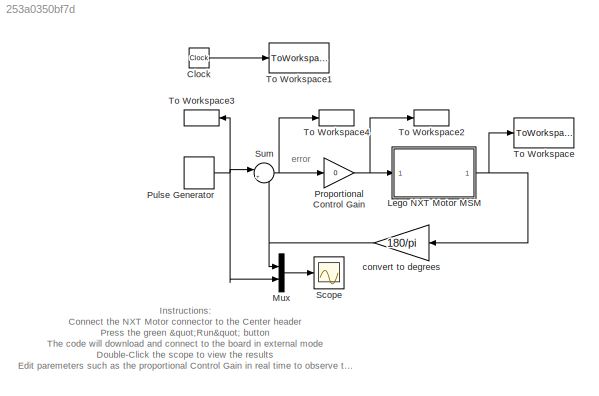
MODEL slx_253a0350bf7d
KIND model
CONFIG AbsTol = auto
CONFIG FixedStep = auto
CONFIG MaxStep = auto
CONFIG MinStep = auto
CONFIG RelTol = 1e-3
CONFIG SampleTimeConstraint = Unconstrained
CONFIG Solver = ode45
CONFIG SolverMode = Auto
CONFIG SolverName = ode45
CONFIG StartTime = 0.0
CONFIG StopTime = 10.0
BLOCK [Clock] Clock
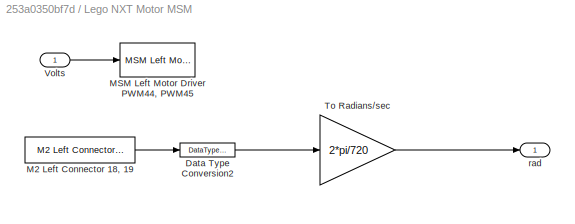
BLOCK [SubSystem] Lego NXT Motor MSM
  Ports = [1, 1]
  RequestExecContextInheritance = off
BLOCK [DataTypeConversion] Lego NXT Motor MSM/Data Type Conversion2
  OutDataTypeStr = double
  RndMeth = Floor
  SaturateOnIntegerOverflow = off
BLOCK [Reference] Lego NXT Motor MSM/M2 Left Connector 18, 19  REF=MinSegLibrary_MinSegMega/M2 Left Connector 18, 19
  Encoder = 1
  PinA = 19
  PinB = 18
  Ports = [0, 1]
  SourceBlock = MinSegLibrary_MinSegMega/M2 Left Connector 18, 19
  SourceType = Encoder_arduino
BLOCK [Reference] Lego NXT Motor MSM/MSM Left Motor Driver PWM44, PWM45  REF=MinSegLibrary_MinSegMega/MSM Left Motor Driver
PWM44, PWM45
  PWMoffset = 0
  Ports = [1]
  SourceBlock = MinSegLibrary_MinSegMega/MSM Left Motor Driver\nPWM44, PWM45
  Vsupply = 3.9
BLOCK [Gain] Lego NXT Motor MSM/To Radians//sec
  Gain = 2*pi/720
  OutDataTypeStr = Inherit: Inherit via internal rule
  ParamDataTypeStr = Inherit: Inherit via internal rule
  SaturateOnIntegerOverflow = off
BLOCK [Inport] Lego NXT Motor MSM/Volts
  IconDisplay = Port number
BLOCK [Outport] Lego NXT Motor MSM/rad 
  IconDisplay = Port number
BLOCK [Mux] Mux
  DisplayOption = bar
  Inputs = 2
  Ports = [2, 1]
BLOCK [Gain] Proportional Control Gain
  Gain = 0
  OutDataTypeStr = Inherit: Inherit via internal rule
  ParamDataTypeStr = Inherit: Inherit via internal rule
  SaturateOnIntegerOverflow = off
BLOCK [DiscretePulseGenerator] Pulse Generator
  Amplitude = 90
  Period = 3
  Ports = [0, 1]
  PulseType = Time based
  PulseWidth = 50
BLOCK [Scope] Scope
  DataFormat = StructureWithTime
  Floating = off
  NumInputPorts = 1
  Ports = [1]
  SampleTime = 0
  SaveName = ScopeData1
  TimeRange = 15
  YMax = 120
  YMin = -20
BLOCK [Sum] Sum
  IconShape = round
  InputSameDT = off
  Inputs = |+-
  OutDataTypeStr = Inherit: Inherit via internal rule
  Ports = [2, 1]
  SaturateOnIntegerOverflow = off
BLOCK [ToWorkspace] To Workspace
  MaxDataPoints = inf
  Ports = [1]
  SampleTime = -1
  VariableName = pos
BLOCK [ToWorkspace] To Workspace1
  MaxDataPoints = inf
  Ports = [1]
  SampleTime = -1
  VariableName = tsim
BLOCK [ToWorkspace] To Workspace2
  MaxDataPoints = inf
  Ports = [1]
  SampleTime = -1
  VariableName = vin
BLOCK [ToWorkspace] To Workspace3
  MaxDataPoints = inf
  Ports = [1]
  SampleTime = -1
  VariableName = ref
BLOCK [ToWorkspace] To Workspace4
  MaxDataPoints = inf
  Ports = [1]
  SampleTime = -1
  VariableName = error
BLOCK [Gain] convert to degrees
  Gain = 180/pi
  OutDataTypeStr = Inherit: Inherit via internal rule
  ParamDataTypeStr = Inherit: Inherit via internal rule
  SaturateOnIntegerOverflow = off
ANNOTATION (root): Instructions : Connect the NXT Motor connector to the Center header Press the green "Run" button The code will download and connect to the board in external mode Double-Click the scope to view the results Edit paremeters such as the proportional Control Gain in real time to observe the effects The sample time can be modified in the in the "Configuration Parameters" which can be accessed by the whe...<+94ch>
ANNOTATION (root): error
LINE Clock:1 -> To Workspace1:1
LINE Lego NXT Motor MSM/Data Type Conversion2:1 -> Lego NXT Motor MSM/To Radians//sec:1
LINE Lego NXT Motor MSM/M2 Left Connector 18, 19:1 -> Lego NXT Motor MSM/Data Type Conversion2:1
LINE Lego NXT Motor MSM/To Radians//sec:1 -> Lego NXT Motor MSM/rad :1
LINE Lego NXT Motor MSM/Volts:1 -> Lego NXT Motor MSM/MSM Left Motor Driver PWM44, PWM45:1
NET Lego NXT Motor MSM:1 -> To Workspace:1, convert to degrees:1
LINE Mux:1 -> Scope:1
NET Proportional Control Gain:1 -> Lego NXT Motor MSM:1, To Workspace2:1
NET Pulse Generator:1 -> Mux:2, Sum:1, To Workspace3:1
NET Sum:1 -> Proportional Control Gain:1, To Workspace4:1
NET convert to degrees:1 -> Mux:1, Sum:2
note: NET lines group one-source signal fan-out (src -> all destinations, sorted); 1:1 wires keep LINE
